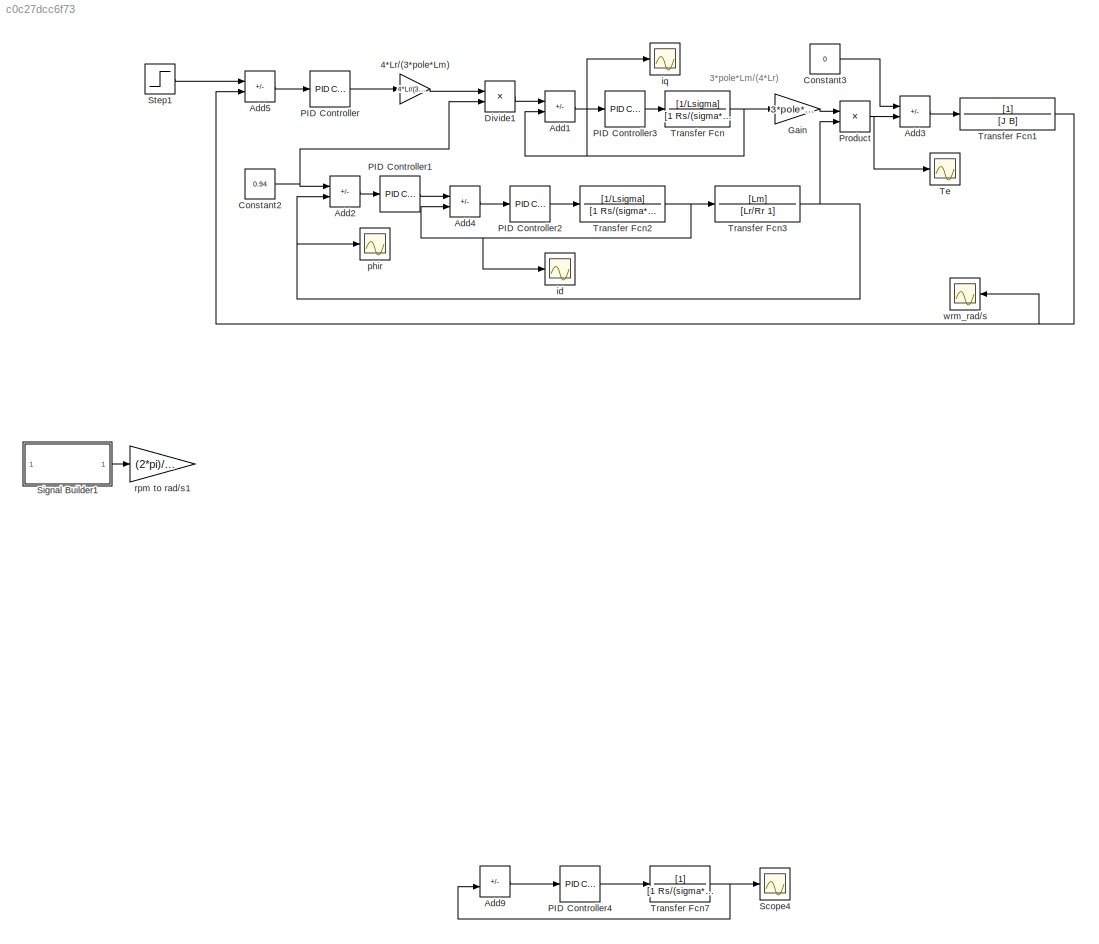
MODEL slx_c0c27dcc6f73
KIND model
CONFIG AbsTol = auto
CONFIG EnableMultiTasking = off
CONFIG FixedStep = 0.001
CONFIG MaxStep = auto
CONFIG MinStep = auto
CONFIG RelTol = 1e-3
CONFIG SampleTimeConstraint = Unconstrained
CONFIG SolverName = VariableStepAuto
CONFIG StartTime = 0.0
CONFIG StopTime = 1
BLOCK [Gain] 4*Lr//(3*pole*Lm)
  Gain = 4*Lr/(3*pole*Lm)
  NameLocation = top
BLOCK [Sum] Add1
  IconShape = rectangular
  Inputs = +-
BLOCK [Sum] Add2
  IconShape = rectangular
  Inputs = +-
BLOCK [Sum] Add3
  IconShape = rectangular
  Inputs = -+
BLOCK [Sum] Add4
  IconShape = rectangular
  Inputs = +-
BLOCK [Sum] Add5
  IconShape = rectangular
  Inputs = +-
BLOCK [Sum] Add9
  IconShape = rectangular
  Inputs = +-
BLOCK [Constant] Constant2
  Value = 0.94
BLOCK [Constant] Constant3
  Value = 0
BLOCK [Product] Divide1
  Inputs = */
BLOCK [Gain] Gain
  Gain = 3*pole*Lm/(4*Lr)
BLOCK [Reference] PID Controller  REF=slpidlib/PID Controller
  LibrarySourceBlock = simulink/Continuous/PID Controller
  SourceBlock = slpidlib/PID Controller
  SourceType = PID 1dof
BLOCK [Reference] PID Controller1  REF=slpidlib/PID Controller
  LibrarySourceBlock = simulink/Continuous/PID Controller
  SourceBlock = slpidlib/PID Controller
  SourceType = PID 1dof
BLOCK [Reference] PID Controller2  REF=slpidlib/PID Controller
  LibrarySourceBlock = simulink/Continuous/PID Controller
  SourceBlock = slpidlib/PID Controller
  SourceType = PID 1dof
BLOCK [Reference] PID Controller3  REF=slpidlib/PID Controller
  LibrarySourceBlock = simulink/Continuous/PID Controller
  SourceBlock = slpidlib/PID Controller
  SourceType = PID 1dof
BLOCK [Reference] PID Controller4  REF=slpidlib/PID Controller
  LibrarySourceBlock = simulink/Continuous/PID Controller
  SourceBlock = slpidlib/PID Controller
  SourceType = PID 1dof
BLOCK [Product] Product
BLOCK [Scope] Scope4
  Floating = off
  NumInputPorts = 1
  ScopeSpecificationString = Simulink.scopes.TimeScopeBlockCfg('CurrentConfiguration', extmgr.ConfigurationSet(extmgr.Configuration('Core','General UI',true),extmgr.Configuration('Core','Source UI',true),extmgr.Configuration('Sources','WiredSimulink',true,'DataLoggingVariableName','ScopeData2'),extmgr.Configuration('Visuals','Time Domain',true,'SerializedDisplays',{struct('MinYLimReal','-1.68781','MaxYLimReal','15.19027','YLa...<+1376ch>
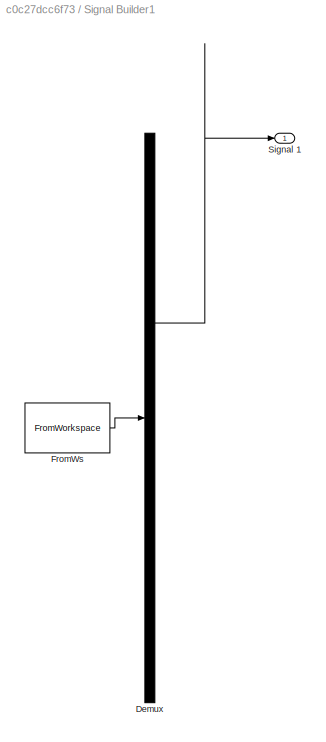
BLOCK [SubSystem] Signal Builder1
  ClipboardFcn = sigbuilder_block('clipboard');
  CloseFcn = sigbuilder_block('close');
  ContinueFcn = sigbuilder_block('continue');
  CopyFcn = sigbuilder_block('copy');
  DeleteFcn = sigbuilder_block('delete');
  LoadFcn = sigbuilder_block('load');
  MaskHideContents = on
  ModelCloseFcn = sigbuilder_block('modelClose');
  NameChangeFcn = sigbuilder_block('namechange');
  OpenFcn = sigbuilder_block('open',[346 178 550 400 ]);
  PauseFcn = sigbuilder_block('pause');
  PreSaveFcn = sigbuilder_block('preSave');
  StartFcn = sigbuilder_block('start');
  StopFcn = sigbuilder_block('stop');
  Tag = STV Subsys
BLOCK [Demux] Signal Builder1/Demux
  DisplayOption = none
  Outputs = 1
  Tag = STV Demux
BLOCK [FromWorkspace] Signal Builder1/FromWs
  Tag = STV FromWs
  VariableName = tuvar
BLOCK [Outport] Signal Builder1/Signal 1
  Tag = STV Outport
BLOCK [Step] Step1
  After = 100
  SampleTime = 0
  Time = 0
BLOCK [Scope] Te
  Floating = off
  NumInputPorts = 1
  ScopeSpecificationString = Simulink.scopes.TimeScopeBlockCfg('CurrentConfiguration', extmgr.ConfigurationSet(extmgr.Configuration('Core','General UI',true,'FigureColor',[1 1 1]),extmgr.Configuration('Core','Source UI',true),extmgr.Configuration('Sources','WiredSimulink',true,'DataLoggingVariableName','ScopeData1'),extmgr.Configuration('Visuals','Time Domain',true,'SerializedDisplays',{struct('MinYLimReal','-1.54065','MaxYLi...<+1563ch>
BLOCK [TransferFcn] Transfer Fcn
  Denominator = [1 Rs/(sigma*Ls)]
  Numerator = [1/Lsigma]
BLOCK [TransferFcn] Transfer Fcn1
  Denominator = [J B]
BLOCK [TransferFcn] Transfer Fcn2
  Denominator = [1 Rs/(sigma*Ls)-(1-sigma)/(sigma*Tr)]
  Numerator = [1/Lsigma]
BLOCK [TransferFcn] Transfer Fcn3
  Denominator = [Lr/Rr 1]
  Numerator = [Lm]
BLOCK [TransferFcn] Transfer Fcn7
  Denominator = [1 Rs/(sigma*Ls)-(1-sigma)/(sigma*Tr)]
BLOCK [Scope] id
  Floating = off
  NumInputPorts = 1
  ScopeSpecificationString = Simulink.scopes.TimeScopeBlockCfg('CurrentConfiguration', extmgr.ConfigurationSet(extmgr.Configuration('Core','General UI',true,'FigureColor',[1 1 1]),extmgr.Configuration('Core','Source UI',true),extmgr.Configuration('Sources','WiredSimulink',true,'DataLoggingVariableName','ScopeData4'),extmgr.Configuration('Visuals','Time Domain',true,'SerializedDisplays',{struct('MinYLimReal','-55.57838','MaxYL...<+1571ch>
BLOCK [Scope] iq
  Floating = off
  NumInputPorts = 1
  ScopeSpecificationString = Simulink.scopes.TimeScopeBlockCfg('CurrentConfiguration', extmgr.ConfigurationSet(extmgr.Configuration('Core','General UI',true,'FigureColor',[1 1 1]),extmgr.Configuration('Core','Source UI',true),extmgr.Configuration('Sources','WiredSimulink',true,'DataLoggingVariableName','ScopeData1'),extmgr.Configuration('Visuals','Time Domain',true,'SerializedDisplays',{struct('MinYLimReal','-0.56878','MaxYLi...<+1564ch>
BLOCK [Scope] phir
  Floating = off
  NumInputPorts = 1
  ScopeSpecificationString = Simulink.scopes.TimeScopeBlockCfg('CurrentConfiguration', extmgr.ConfigurationSet(extmgr.Configuration('Core','General UI',true,'FigureColor',[1 1 1]),extmgr.Configuration('Core','Source UI',true),extmgr.Configuration('Sources','WiredSimulink',true,'DataLoggingVariableName','ScopeData3'),extmgr.Configuration('Visuals','Time Domain',true,'SerializedDisplays',{struct('MinYLimReal','-0.1175','MaxYLim...<+1544ch>
BLOCK [Gain] rpm to rad//s1
  Gain = (2*pi)/60
BLOCK [Scope] wrm_rad//s
  Floating = off
  NameLocation = top
  NumInputPorts = 1
  ScopeSpecificationString = Simulink.scopes.TimeScopeBlockCfg('CurrentConfiguration', extmgr.ConfigurationSet(extmgr.Configuration('Core','General UI',true,'FigureColor',[1 1 1]),extmgr.Configuration('Core','Source UI',true),extmgr.Configuration('Sources','WiredSimulink',true,'DataLoggingVariableName','ScopeData1'),extmgr.Configuration('Visuals','Time Domain',true,'SerializedDisplays',{struct('MinYLimReal','-12.54005','MaxYL...<+1575ch>
ANNOTATION (root): 3*pole*Lm/(4*Lr)
LINE 4*Lr//(3*pole*Lm):1 -> Divide1:1
LINE Add1:1 -> PID Controller3:1
LINE Add2:1 -> PID Controller1:1
LINE Add3:1 -> Transfer Fcn1:1
LINE Add4:1 -> PID Controller2:1
LINE Add5:1 -> PID Controller:1
LINE Add9:1 -> PID Controller4:1
NET Constant2:1 -> Add2:1, Divide1:2
LINE Constant3:1 -> Add3:1
LINE Divide1:1 -> Add1:1
LINE Gain:1 -> Product:1
LINE PID Controller1:1 -> Add4:1
LINE PID Controller2:1 -> Transfer Fcn2:1
LINE PID Controller3:1 -> Transfer Fcn:1
LINE PID Controller4:1 -> Transfer Fcn7:1
LINE PID Controller:1 -> 4*Lr//(3*pole*Lm):1
NET Product:1 -> Add3:2, Te:1
LINE Signal Builder1:1 -> rpm to rad//s1:1
LINE Step1:1 -> Add5:1
NET Transfer Fcn1:1 -> Add5:2, wrm_rad//s:1
NET Transfer Fcn2:1 -> Add4:2, Transfer Fcn3:1, id:1
NET Transfer Fcn3:1 -> Add2:2, Product:2, phir:1
NET Transfer Fcn7:1 -> Add9:2, Scope4:1
NET Transfer Fcn:1 -> Add1:2, Gain:1, iq:1
note: NET lines group one-source signal fan-out (src -> all destinations, sorted); 1:1 wires keep LINE
